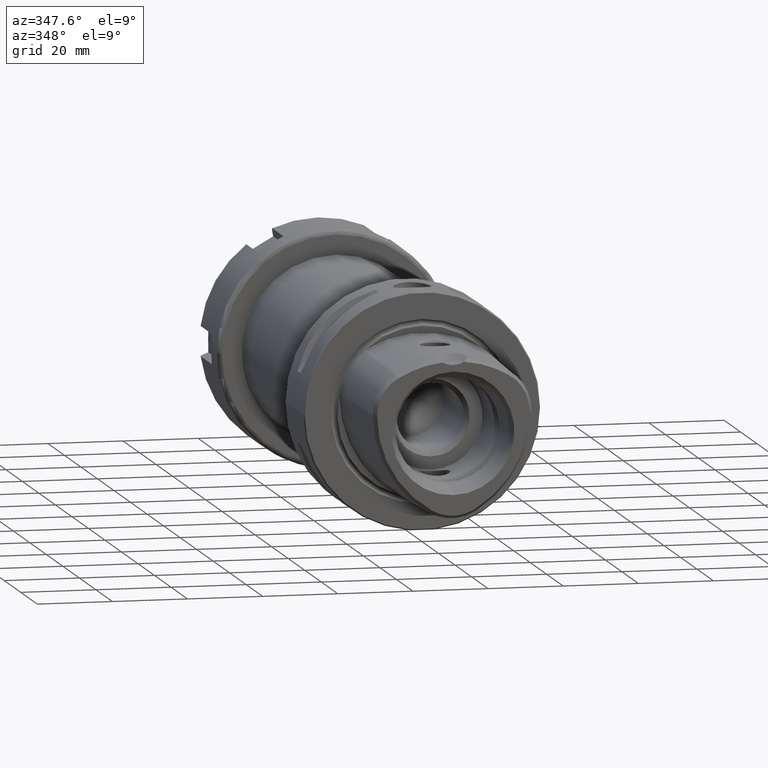
[diagram: clean part render]
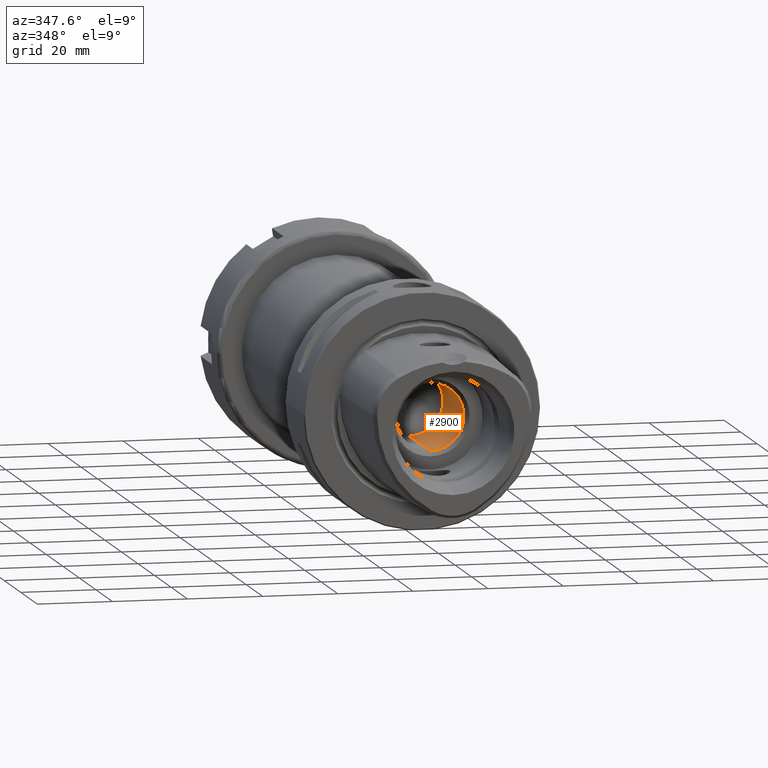
[diagram: same view with one face highlighted and labeled with its STEP entity id]
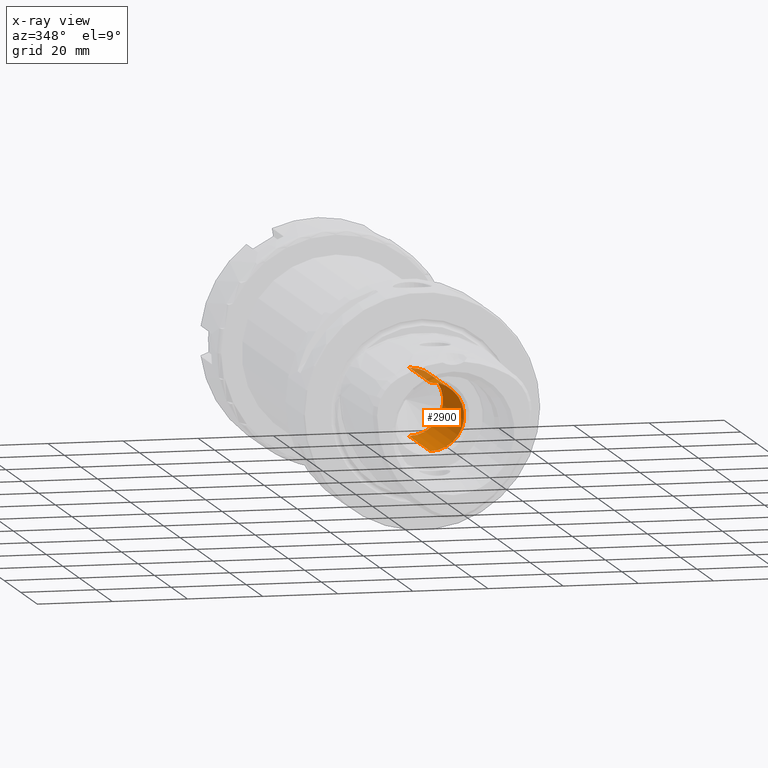
[diagram: x-ray of the same camera — body ghosted, the highlighted face saturated]
A machine part, auxiliary view. The second image highlights one B-rep face of the part: STEP entity #2900.
The next image is the same camera in x-ray: the body ghosted, the highlighted face saturated — about 7% of this face is hidden behind the body in this view.
In plain terms, the highlighted cylindrical surface (edge-blend (fillet) strip) has radius 9 mm, axis along (0, 1, 0).
Its self-contained STEP definition (entity closure, byte-faithful):
#1034=DIRECTION('',(0.E0,1.E0,0.E0));
#1035=VECTOR('',#1034,2.554084126503E1);
#1036=CARTESIAN_POINT('',(0.E0,-1.004084126503E1,-9.E0));
#1037=LINE('',#1036,#1035);
#1038=DIRECTION('',(0.E0,1.E0,0.E0));
#1039=VECTOR('',#1038,2.554084126503E1);
#1040=CARTESIAN_POINT('',(0.E0,-1.004084126503E1,9.E0));
#1041=LINE('',#1040,#1039);
#1042=CARTESIAN_POINT('',(0.E0,-1.004084126503E1,0.E0));
#1043=DIRECTION('',(0.E0,-1.E0,0.E0));
#1044=DIRECTION('',(0.E0,0.E0,-1.E0));
#1045=AXIS2_PLACEMENT_3D('',#1042,#1043,#1044);
#1065=CARTESIAN_POINT('',(0.E0,1.55E1,0.E0));
#1066=DIRECTION('',(0.E0,-1.E0,0.E0));
#1067=DIRECTION('',(0.E0,0.E0,-1.E0));
#1068=AXIS2_PLACEMENT_3D('',#1065,#1066,#1067);
#1910=CARTESIAN_POINT('',(0.E0,-1.004084126503E1,-9.E0));
#1911=CARTESIAN_POINT('',(0.E0,1.55E1,-9.E0));
#1912=VERTEX_POINT('',#1910);
#1913=VERTEX_POINT('',#1911);
#1916=CARTESIAN_POINT('',(0.E0,-1.004084126503E1,9.E0));
#1917=CARTESIAN_POINT('',(0.E0,1.55E1,9.E0));
#1918=VERTEX_POINT('',#1916);
#1919=VERTEX_POINT('',#1917);
#2886=CARTESIAN_POINT('',(0.E0,-1.253483844617E1,0.E0));
#2887=DIRECTION('',(0.E0,1.E0,0.E0));
#2888=DIRECTION('',(0.E0,0.E0,-1.E0));
#2889=AXIS2_PLACEMENT_3D('',#2886,#2887,#2888);
#2890=CYLINDRICAL_SURFACE('',#2889,9.E0);
#2892=ORIENTED_EDGE('',*,*,#2891,.T.);
#2894=ORIENTED_EDGE('',*,*,#2893,.T.);
#2896=ORIENTED_EDGE('',*,*,#2895,.F.);
#2897=ORIENTED_EDGE('',*,*,#2880,.F.);
#2898=EDGE_LOOP('',(#2892,#2894,#2896,#2897));
#2899=FACE_OUTER_BOUND('',#2898,.F.);
#2900=ADVANCED_FACE('',(#2899),#2890,.F.);
#1046=CIRCLE('',#1045,9.E0);
#1069=CIRCLE('',#1068,9.E0);
#2880=EDGE_CURVE('',#1912,#1918,#1046,.T.);
#2891=EDGE_CURVE('',#1912,#1913,#1037,.T.);
#2893=EDGE_CURVE('',#1913,#1919,#1069,.T.);
#2895=EDGE_CURVE('',#1918,#1919,#1041,.T.);